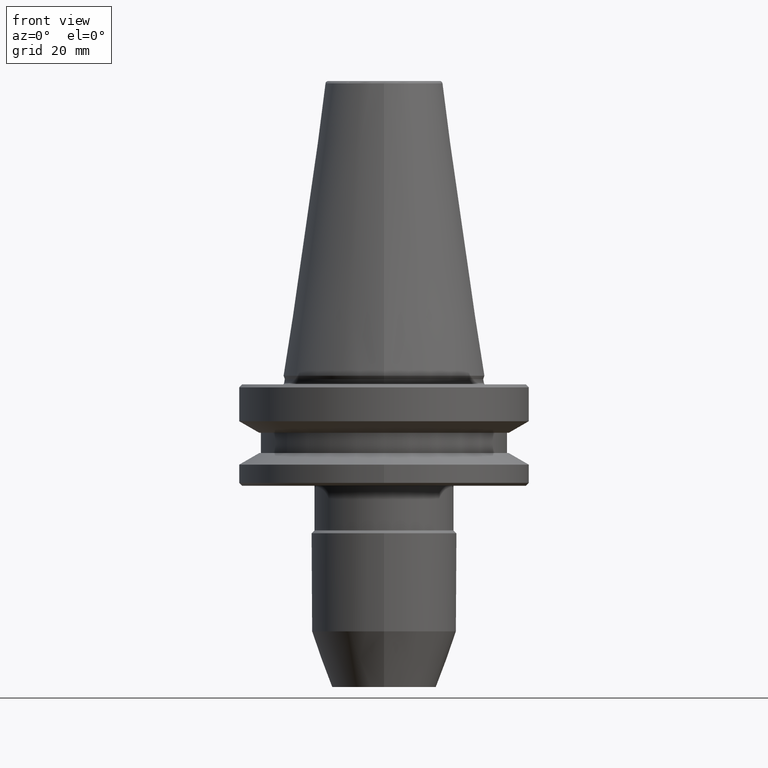
[diagram: clean part render]
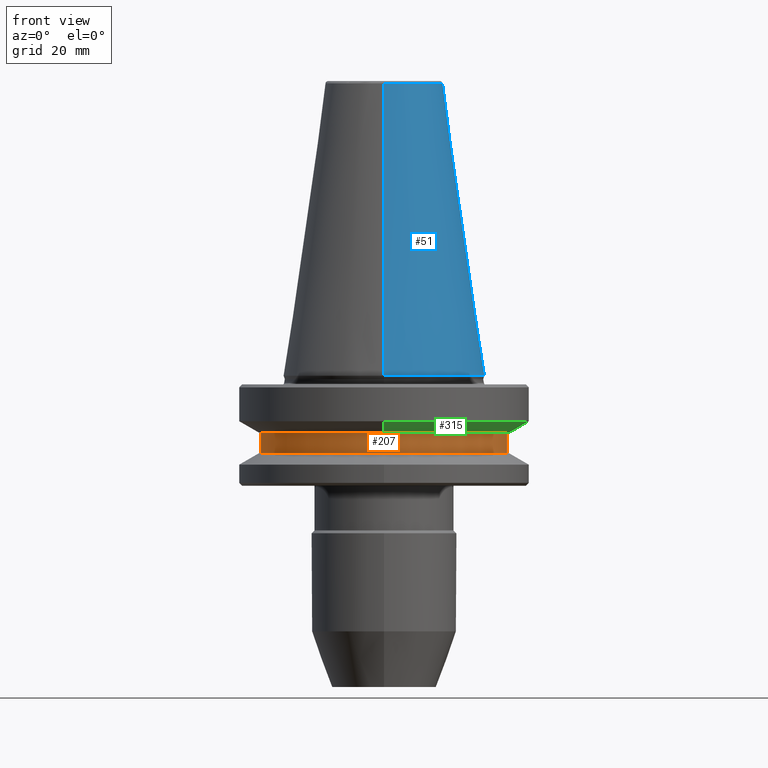
[diagram: same view with three faces highlighted in distinct colors, each labeled with its STEP entity id]
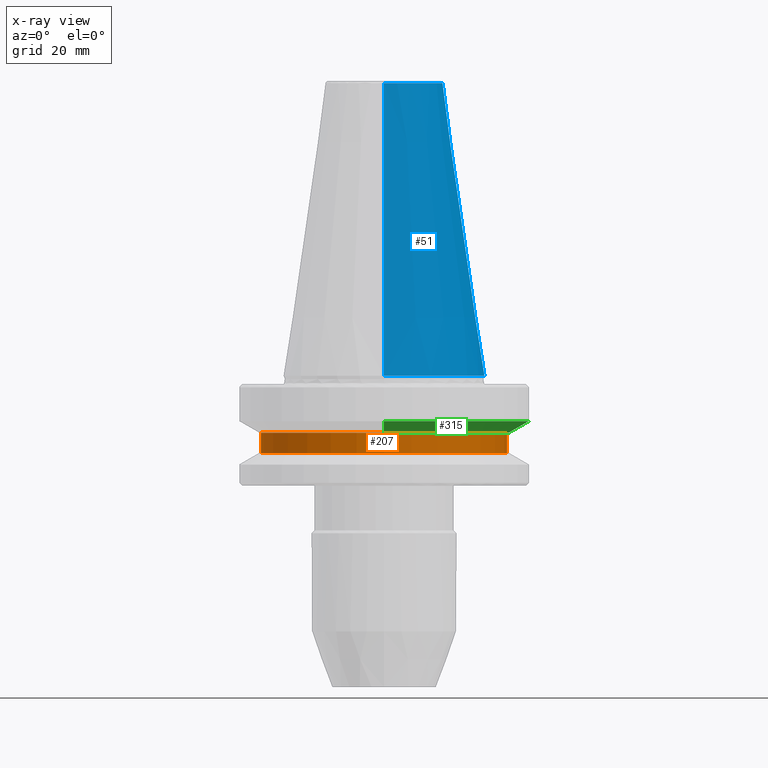
[diagram: x-ray of the same camera — body ghosted, the three highlighted faces saturated]
A machine part, front view with three faces highlighted in distinct colors.
The next image is the same camera in x-ray (body ghosted, the three faces saturated) — at least one of them is partly hidden behind the body in this view.
Their STEP definitions:

[orange] entity #207 — the highlighted cylindrical surface (partial cylindrical patch) has radius 42.5 mm, axis along (0, 0, 1).
#32 = LINE ( 'NONE', #1134, #979 ) ;
#107 = VERTEX_POINT ( 'NONE', #880 ) ;
#131 = VECTOR ( 'NONE', #316, 1000.000000000000000 ) ;
#143 = CARTESIAN_POINT ( 'NONE',  ( 0.0000000000000000000, 0.0000000000000000000, -19.70000000000001000 ) ) ;
#202 = EDGE_CURVE ( 'NONE', #1388, #107, #1468, .T. ) ;
#207 = ADVANCED_FACE ( 'NONE', ( #317 ), #1205, .T. ) ;
#254 = DIRECTION ( 'NONE',  ( 1.000000000000000000, 0.0000000000000000000, 0.0000000000000000000 ) ) ;
#276 = VERTEX_POINT ( 'NONE', #742 ) ;
#282 = EDGE_CURVE ( 'NONE', #541, #1388, #32, .T. ) ;
#311 = CARTESIAN_POINT ( 'NONE',  ( -42.50000000000000000, 5.204748896376250900E-015, -26.70000000000000600 ) ) ;
#316 = DIRECTION ( 'NONE',  ( 0.0000000000000000000, 0.0000000000000000000, 1.000000000000000000 ) ) ;
#317 = FACE_OUTER_BOUND ( 'NONE', #715, .T. ) ;
#389 = DIRECTION ( 'NONE',  ( 0.0000000000000000000, 0.0000000000000000000, 1.000000000000000000 ) ) ;
#463 = LINE ( 'NONE', #311, #131 ) ;
#498 = ORIENTED_EDGE ( 'NONE', *, *, #1169, .T. ) ;
#541 = VERTEX_POINT ( 'NONE', #753 ) ;
#581 = ORIENTED_EDGE ( 'NONE', *, *, #1098, .F. ) ;
#674 = AXIS2_PLACEMENT_3D ( 'NONE', #143, #823, #822 ) ;
#715 = EDGE_LOOP ( 'NONE', ( #581, #498, #949, #1046 ) ) ;
#720 = CIRCLE ( 'NONE', #1233, 42.50000000000000000 ) ;
#722 = CARTESIAN_POINT ( 'NONE',  ( 42.50000000000000000, 0.0000000000000000000, -19.70000000000001000 ) ) ;
#742 = CARTESIAN_POINT ( 'NONE',  ( -42.50000000000000000, 5.204748896376250900E-015, -26.70000000074191600 ) ) ;
#753 = CARTESIAN_POINT ( 'NONE',  ( 42.50000000000000000, 0.0000000000000000000, -26.70000000074191600 ) ) ;
#808 = DIRECTION ( 'NONE',  ( 1.000000000000000000, 0.0000000000000000000, 0.0000000000000000000 ) ) ;
#822 = DIRECTION ( 'NONE',  ( 1.000000000000000000, 0.0000000000000000000, 0.0000000000000000000 ) ) ;
#823 = DIRECTION ( 'NONE',  ( -0.0000000000000000000, -0.0000000000000000000, -1.000000000000000000 ) ) ;
#861 = DIRECTION ( 'NONE',  ( 0.0000000000000000000, 0.0000000000000000000, 1.000000000000000000 ) ) ;
#880 = CARTESIAN_POINT ( 'NONE',  ( -42.50000000000000000, 5.204748896376250900E-015, -19.70000000000001000 ) ) ;
#949 = ORIENTED_EDGE ( 'NONE', *, *, #282, .T. ) ;
#967 = CARTESIAN_POINT ( 'NONE',  ( 0.0000000000000000000, 0.0000000000000000000, -26.70000000000000600 ) ) ;
#979 = VECTOR ( 'NONE', #1430, 1000.000000000000000 ) ;
#1044 = CARTESIAN_POINT ( 'NONE',  ( 0.0000000000000000000, 0.0000000000000000000, -26.70000000074191600 ) ) ;
#1046 = ORIENTED_EDGE ( 'NONE', *, *, #202, .T. ) ;
#1098 = EDGE_CURVE ( 'NONE', #276, #107, #463, .T. ) ;
#1134 = CARTESIAN_POINT ( 'NONE',  ( 42.50000000000000000, 0.0000000000000000000, -26.70000000000000600 ) ) ;
#1153 = AXIS2_PLACEMENT_3D ( 'NONE', #967, #861, #808 ) ;
#1169 = EDGE_CURVE ( 'NONE', #276, #541, #720, .T. ) ;
#1205 = CYLINDRICAL_SURFACE ( 'NONE', #1153, 42.50000000000000000 ) ;
#1233 = AXIS2_PLACEMENT_3D ( 'NONE', #1044, #389, #254 ) ;
#1388 = VERTEX_POINT ( 'NONE', #722 ) ;
#1430 = DIRECTION ( 'NONE',  ( 0.0000000000000000000, 0.0000000000000000000, 1.000000000000000000 ) ) ;
#1468 = CIRCLE ( 'NONE', #674, 42.50000000000000000 ) ;

[blue] entity #51 — the highlighted conical surface has half-angle 8.297 deg.
#51 = ADVANCED_FACE ( 'NONE', ( #111 ), #204, .T. ) ;
#63 = VECTOR ( 'NONE', #1506, 1000.000000000000200 ) ;
#88 = CIRCLE ( 'NONE', #1021, 20.20381605199999000 ) ;
#111 = FACE_OUTER_BOUND ( 'NONE', #402, .T. ) ;
#204 = CONICAL_SURFACE ( 'NONE', #723, 34.92500000000000400, 0.1448138465431578200 ) ;
#224 = ORIENTED_EDGE ( 'NONE', *, *, #1144, .T. ) ;
#228 = VERTEX_POINT ( 'NONE', #806 ) ;
#265 = DIRECTION ( 'NONE',  ( 0.0000000000000000000, 1.000000000000000000, 0.0000000000000000000 ) ) ;
#269 = DIRECTION ( 'NONE',  ( 0.0000000000000000000, -3.434447178715200600E-016, -1.000000000000000000 ) ) ;
#273 = CARTESIAN_POINT ( 'NONE',  ( 0.0000000000000000000, 1.848892746611746400E-029, 100.9443082270000600 ) ) ;
#277 = LINE ( 'NONE', #665, #1128 ) ;
#279 = DIRECTION ( 'NONE',  ( 0.0000000000000000000, 1.000000000000000000, 0.0000000000000000000 ) ) ;
#281 = DIRECTION ( 'NONE',  ( 0.0000000000000000000, -3.434447178715200600E-016, -1.000000000000000000 ) ) ;
#284 = CARTESIAN_POINT ( 'NONE',  ( 0.0000000000000000000, 1.848892746611746400E-029, 100.9443082270000600 ) ) ;
#314 = VERTEX_POINT ( 'NONE', #1141 ) ;
#349 = ORIENTED_EDGE ( 'NONE', *, *, #1009, .T. ) ;
#353 = VERTEX_POINT ( 'NONE', #1467 ) ;
#365 = DIRECTION ( 'NONE',  ( 0.0000000000000000000, 1.000000000000000000, -3.973597081693473100E-016 ) ) ;
#366 = DIRECTION ( 'NONE',  ( -0.0000000000000000000, 3.434447178715200600E-016, 1.000000000000000000 ) ) ;
#369 = CARTESIAN_POINT ( 'NONE',  ( 0.0000000000000000000, -3.466878945975778700E-014, 0.0000000000000000000 ) ) ;
#383 = ORIENTED_EDGE ( 'NONE', *, *, #1139, .T. ) ;
#402 = EDGE_LOOP ( 'NONE', ( #224, #1167, #349, #912, #383 ) ) ;
#484 = LINE ( 'NONE', #1509, #63 ) ;
#502 = CARTESIAN_POINT ( 'NONE',  ( 0.0000000000000000000, 20.20381605199999300, 100.9443082270000600 ) ) ;
#576 = CARTESIAN_POINT ( 'NONE',  ( 4.277078946022131700E-015, -34.92500000000004000, 1.199480677166284000E-014 ) ) ;
#603 = EDGE_CURVE ( 'NONE', #228, #733, #277, .T. ) ;
#665 = CARTESIAN_POINT ( 'NONE',  ( 4.277078946022131700E-015, -34.92500000000004000, 1.011182573551119800E-014 ) ) ;
#666 = DIRECTION ( 'NONE',  ( 1.767266086083724100E-017, -0.1443082272630906700, -0.9895327864927892000 ) ) ;
#723 = AXIS2_PLACEMENT_3D ( 'NONE', #1136, #1263, #1313 ) ;
#733 = VERTEX_POINT ( 'NONE', #576 ) ;
#806 = CARTESIAN_POINT ( 'NONE',  ( 3.375666405943206000E-015, -20.20381605199999000, 100.9443082270000600 ) ) ;
#817 = VERTEX_POINT ( 'NONE', #502 ) ;
#912 = ORIENTED_EDGE ( 'NONE', *, *, #1516, .F. ) ;
#1009 = EDGE_CURVE ( 'NONE', #733, #314, #1314, .T. ) ;
#1021 = AXIS2_PLACEMENT_3D ( 'NONE', #273, #269, #265 ) ;
#1128 = VECTOR ( 'NONE', #666, 1000.000000000000100 ) ;
#1136 = CARTESIAN_POINT ( 'NONE',  ( 0.0000000000000000000, -3.469446951953614200E-014, -1.882981036151629500E-015 ) ) ;
#1139 = EDGE_CURVE ( 'NONE', #817, #353, #1289, .T. ) ;
#1141 = CARTESIAN_POINT ( 'NONE',  ( 0.0000000000000000000, 34.92499999999996900, -1.199480677166284000E-014 ) ) ;
#1144 = EDGE_CURVE ( 'NONE', #353, #228, #88, .T. ) ;
#1167 = ORIENTED_EDGE ( 'NONE', *, *, #603, .T. ) ;
#1263 = DIRECTION ( 'NONE',  ( 0.0000000000000000000, -3.434447178715197200E-016, -1.000000000000000000 ) ) ;
#1289 = CIRCLE ( 'NONE', #1342, 20.20381605199999300 ) ;
#1313 = DIRECTION ( 'NONE',  ( 0.0000000000000000000, 1.000000000000000000, -3.434447178715197200E-016 ) ) ;
#1314 = CIRCLE ( 'NONE', #1372, 34.92500000000000400 ) ;
#1342 = AXIS2_PLACEMENT_3D ( 'NONE', #284, #281, #279 ) ;
#1372 = AXIS2_PLACEMENT_3D ( 'NONE', #369, #366, #365 ) ;
#1467 = CARTESIAN_POINT ( 'NONE',  ( 20.20381605190618400, -4.661857163611797700E-009, 100.9443082269864600 ) ) ;
#1506 = DIRECTION ( 'NONE',  ( 0.0000000000000000000, 0.1443082272630900300, -0.9895327864927893100 ) ) ;
#1509 = CARTESIAN_POINT ( 'NONE',  ( 0.0000000000000000000, 34.92499999999996900, -1.387778780781445700E-014 ) ) ;
#1516 = EDGE_CURVE ( 'NONE', #817, #314, #484, .T. ) ;

[green] entity #315 — the highlighted conical surface has half-angle 60 deg.
#27 = EDGE_CURVE ( 'NONE', #1378, #501, #60, .T. ) ;
#59 = CARTESIAN_POINT ( 'NONE',  ( 6.123233995890982900E-015, 50.00000000125927400, -15.70022000227295700 ) ) ;
#60 = CIRCLE ( 'NONE', #1186, 50.00000000002776100 ) ;
#74 = AXIS2_PLACEMENT_3D ( 'NONE', #1014, #1307, #929 ) ;
#137 = AXIS2_PLACEMENT_3D ( 'NONE', #304, #302, #301 ) ;
#213 = AXIS2_PLACEMENT_3D ( 'NONE', #785, #915, #834 ) ;
#245 = ORIENTED_EDGE ( 'NONE', *, *, #1268, .T. ) ;
#283 = LINE ( 'NONE', #59, #1409 ) ;
#299 = EDGE_CURVE ( 'NONE', #1519, #1378, #1239, .T. ) ;
#301 = DIRECTION ( 'NONE',  ( 0.0000000000000000000, -1.000000000000000000, 0.0000000000000000000 ) ) ;
#302 = DIRECTION ( 'NONE',  ( 0.0000000000000000000, -3.469446951866234300E-017, 1.000000000000000000 ) ) ;
#304 = CARTESIAN_POINT ( 'NONE',  ( 0.0000000000000000000, 1.387702452636705400E-016, -19.70000000147500100 ) ) ;
#315 = ADVANCED_FACE ( 'NONE', ( #1011 ), #779, .T. ) ;
#363 = DIRECTION ( 'NONE',  ( 0.0000000000000000000, -0.8660254037875106900, 0.4999999999946790300 ) ) ;
#364 = CARTESIAN_POINT ( 'NONE',  ( 0.0000000000000000000, -50.00000000125927400, -15.70022000227295700 ) ) ;
#417 = VERTEX_POINT ( 'NONE', #1214 ) ;
#501 = VERTEX_POINT ( 'NONE', #975 ) ;
#543 = VERTEX_POINT ( 'NONE', #971 ) ;
#595 = CARTESIAN_POINT ( 'NONE',  ( 50.00000000002776100, 0.0000000000000000000, -15.70022000298397200 ) ) ;
#653 = LINE ( 'NONE', #364, #1106 ) ;
#779 = CONICAL_SURFACE ( 'NONE', #213, 50.00000000125927400, 1.047197551202741800 ) ;
#782 = CIRCLE ( 'NONE', #137, 43.07217782344523000 ) ;
#785 = CARTESIAN_POINT ( 'NONE',  ( 0.0000000000000000000, 0.0000000000000000000, -15.70022000227295700 ) ) ;
#834 = DIRECTION ( 'NONE',  ( 0.0000000000000000000, -1.000000000000000000, 0.0000000000000000000 ) ) ;
#911 = ORIENTED_EDGE ( 'NONE', *, *, #27, .T. ) ;
#915 = DIRECTION ( 'NONE',  ( 0.0000000000000000000, -3.469446951866234300E-017, 1.000000000000000000 ) ) ;
#929 = DIRECTION ( 'NONE',  ( 1.000000000000000000, 0.0000000000000000000, 0.0000000000000000000 ) ) ;
#934 = DIRECTION ( 'NONE',  ( -0.0000000000000000000, -0.0000000000000000000, -1.000000000000000000 ) ) ;
#940 = CARTESIAN_POINT ( 'NONE',  ( 0.0000000000000000000, 0.0000000000000000000, -15.70022000298397200 ) ) ;
#971 = CARTESIAN_POINT ( 'NONE',  ( 5.699027233059473500E-015, 43.07217782344523000, -19.70000000147500100 ) ) ;
#975 = CARTESIAN_POINT ( 'NONE',  ( 0.0000000000000000000, -50.00000000002776100, -15.70022000298397200 ) ) ;
#1011 = FACE_OUTER_BOUND ( 'NONE', #1196, .T. ) ;
#1014 = CARTESIAN_POINT ( 'NONE',  ( 0.0000000000000000000, 0.0000000000000000000, -15.70022000298397200 ) ) ;
#1028 = EDGE_CURVE ( 'NONE', #417, #501, #653, .T. ) ;
#1096 = EDGE_CURVE ( 'NONE', #417, #543, #782, .T. ) ;
#1106 = VECTOR ( 'NONE', #363, 1000.000000000000000 ) ;
#1107 = DIRECTION ( 'NONE',  ( 1.000000000000000000, 0.0000000000000000000, 0.0000000000000000000 ) ) ;
#1186 = AXIS2_PLACEMENT_3D ( 'NONE', #940, #934, #1107 ) ;
#1196 = EDGE_LOOP ( 'NONE', ( #1232, #245, #1499, #911, #1476 ) ) ;
#1214 = CARTESIAN_POINT ( 'NONE',  ( 0.0000000000000000000, -43.07217782344523000, -19.70000000147500100 ) ) ;
#1222 = DIRECTION ( 'NONE',  ( 1.060575238728669000E-016, 0.8660254037875106900, 0.4999999999946791500 ) ) ;
#1232 = ORIENTED_EDGE ( 'NONE', *, *, #1096, .T. ) ;
#1239 = CIRCLE ( 'NONE', #74, 50.00000000002776100 ) ;
#1268 = EDGE_CURVE ( 'NONE', #543, #1519, #283, .T. ) ;
#1307 = DIRECTION ( 'NONE',  ( -0.0000000000000000000, -0.0000000000000000000, -1.000000000000000000 ) ) ;
#1378 = VERTEX_POINT ( 'NONE', #595 ) ;
#1409 = VECTOR ( 'NONE', #1222, 1000.000000000000000 ) ;
#1476 = ORIENTED_EDGE ( 'NONE', *, *, #1028, .F. ) ;
#1499 = ORIENTED_EDGE ( 'NONE', *, *, #299, .T. ) ;
#1505 = CARTESIAN_POINT ( 'NONE',  ( 6.123233995740165300E-015, 50.00000000002776100, -15.70022000298397200 ) ) ;
#1519 = VERTEX_POINT ( 'NONE', #1505 ) ;